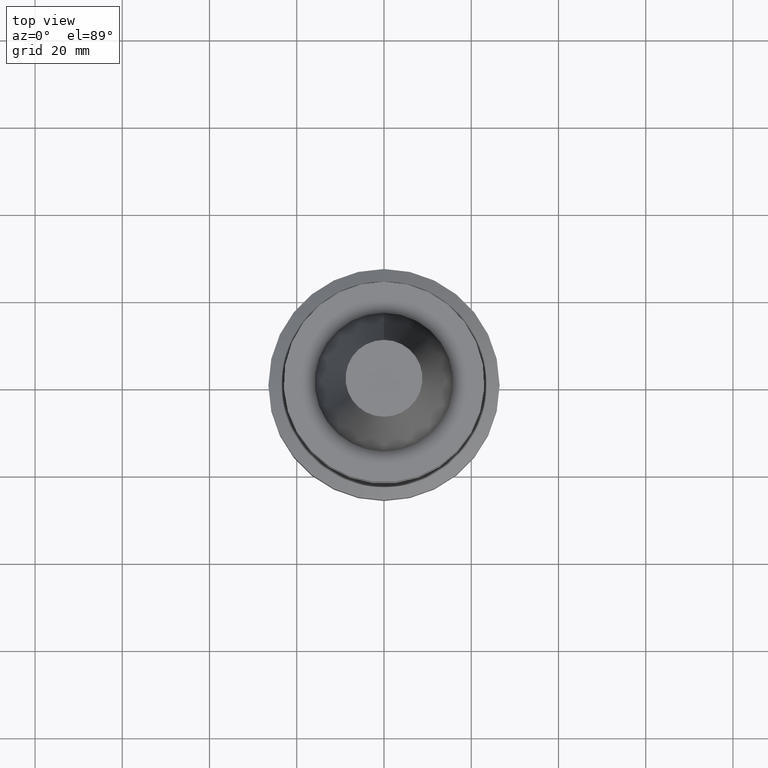
[diagram: clean part render]
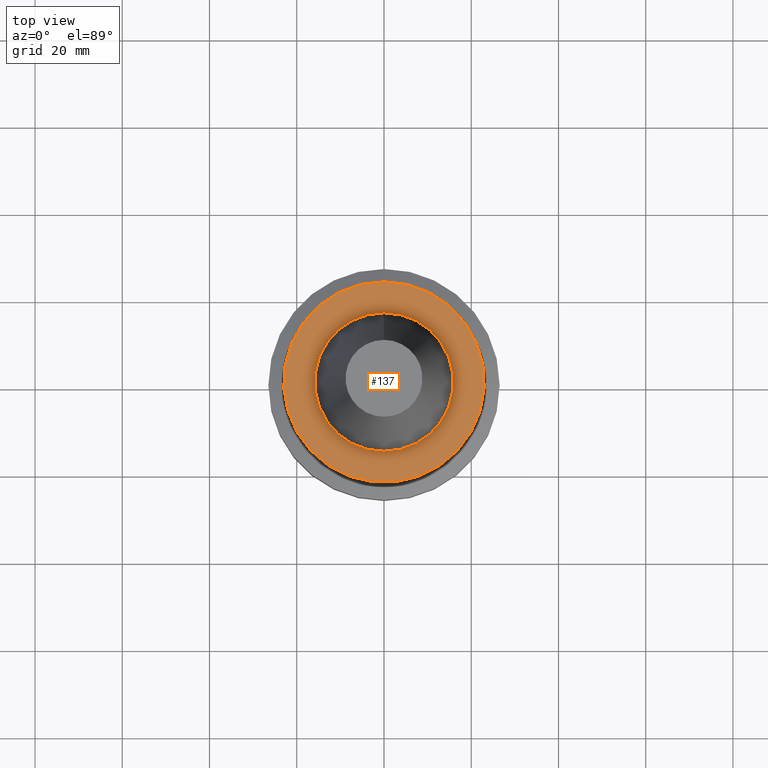
[diagram: same view with one face highlighted and labeled with its STEP entity id]
A machine part, top view. The second image highlights one B-rep face of the part: STEP entity #137.
In plain terms, the highlighted planar face has unit normal (-0, -0, 1).
Its self-contained STEP definition (entity closure, byte-faithful):
#128=EDGE_CURVE('Unnamed[1]',#269,#269,#270,.T.);
#137=ADVANCED_FACE('Unnamed[1]',(#282,#283),#284,.T.);
#142=EDGE_CURVE('Unnamed[1]',#291,#291,#292,.T.);
#269=VERTEX_POINT('',#436);
#270=CIRCLE('',#437,23.0);
#282=FACE_OUTER_BOUND('',#453,.T.);
#283=FACE_BOUND('',#454,.T.);
#284=PLANE('',#455);
#291=VERTEX_POINT('',#464);
#292=CIRCLE('',#465,15.875);
#436=CARTESIAN_POINT('',(6.12323399573674E-017,23.0,-0.999999999999997));
#437=AXIS2_PLACEMENT_3D('',#589,#590,#591);
#453=EDGE_LOOP('',(#602));
#454=EDGE_LOOP('',(#603));
#455=AXIS2_PLACEMENT_3D('',#604,#605,#606);
#464=CARTESIAN_POINT('',(6.12323399573675E-017,15.875,-0.999999999999998));
#465=AXIS2_PLACEMENT_3D('',#613,#614,#615);
#589=CARTESIAN_POINT('',(6.12323399573677E-017,1.22464679914735E-016,-1.0));
#590=DIRECTION('',(6.12323399573677E-017,1.22464679914735E-016,-1.0));
#591=DIRECTION('',(-1.23259516440783E-032,1.0,1.22464679914735E-016));
#602=ORIENTED_EDGE('',*,*,#128,.F.);
#603=ORIENTED_EDGE('',*,*,#142,.T.);
#604=CARTESIAN_POINT('',(6.12323399573674E-017,19.4375,-0.999999999999998));
#605=DIRECTION('',(-6.12323399573677E-017,-1.22464679914735E-016,1.0));
#606=DIRECTION('',(1.23259516440783E-032,-1.0,-1.22464679914735E-016));
#613=CARTESIAN_POINT('',(6.12323399573677E-017,1.22464679914735E-016,-1.0));
#614=DIRECTION('',(6.12323399573677E-017,1.22464679914735E-016,-1.0));
#615=DIRECTION('',(-1.23259516440783E-032,1.0,1.22464679914735E-016));